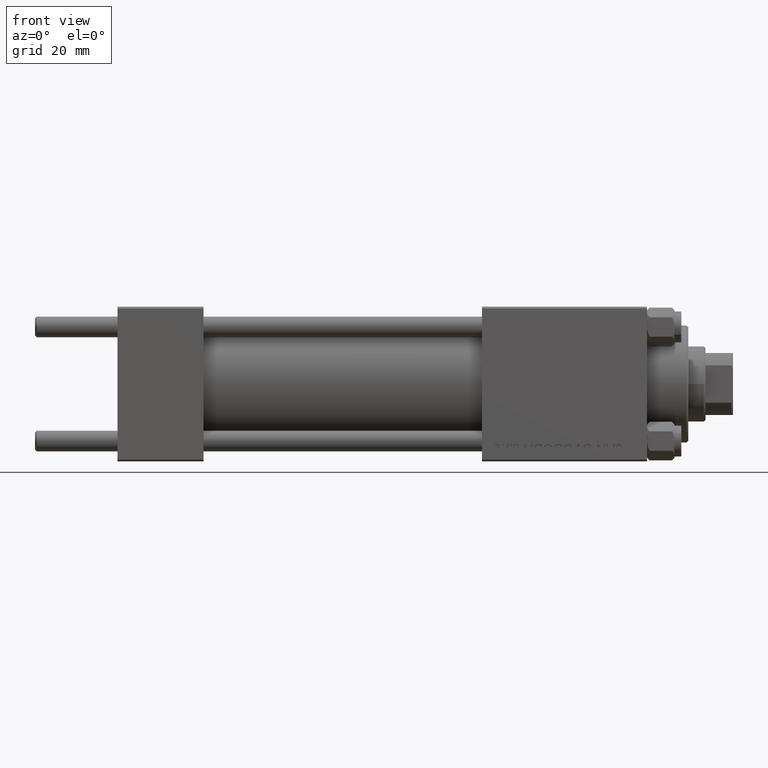
[diagram: clean part render]
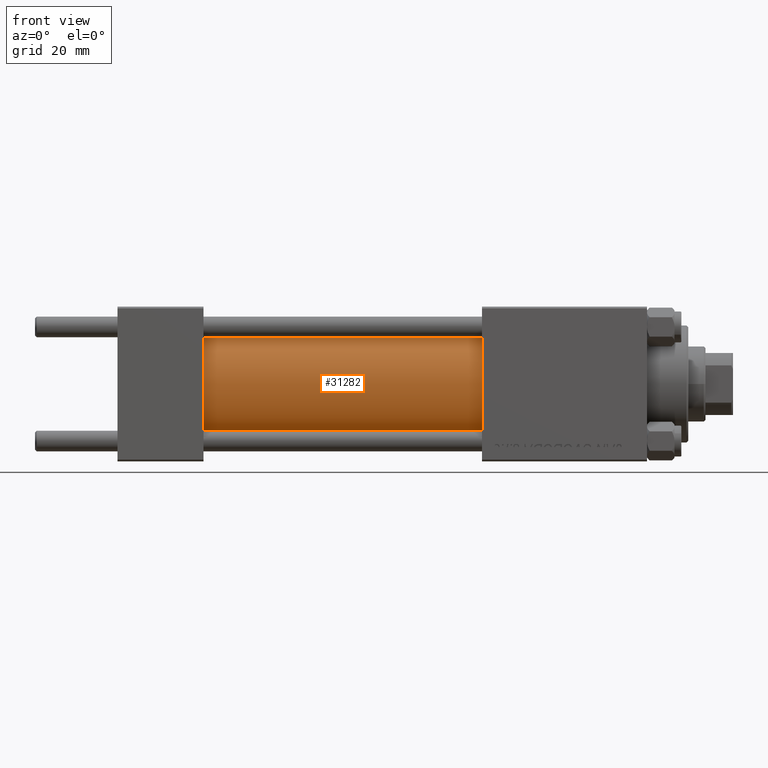
[diagram: same view with one face highlighted and labeled with its STEP entity id]
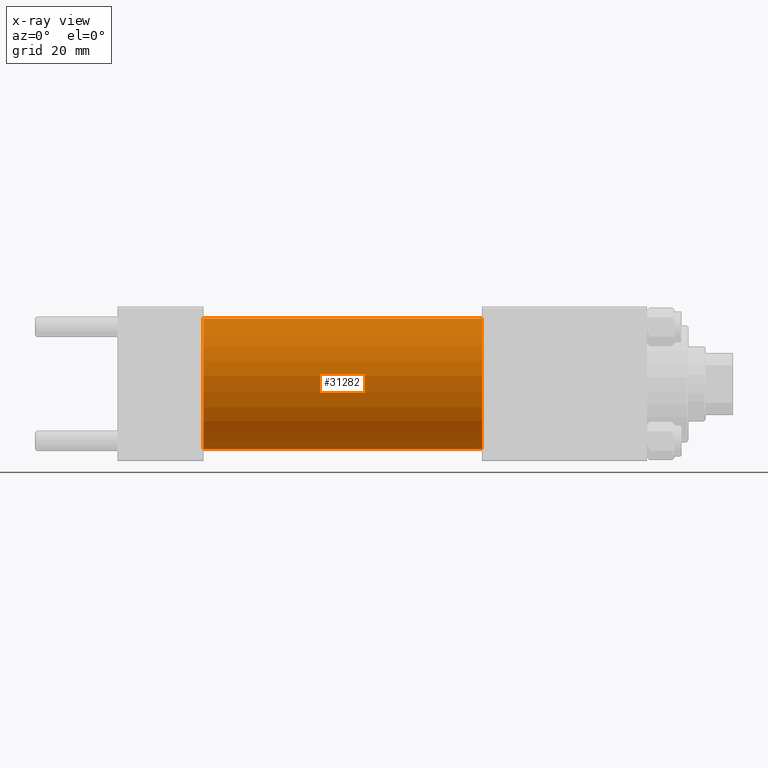
[diagram: x-ray of the same camera — body ghosted, the highlighted face saturated]
A machine part, front view. The second image highlights one B-rep face of the part: STEP entity #31282.
The next image is the same camera in x-ray: the body ghosted, the highlighted face saturated — about 0% of this face is hidden behind the body in this view.
In plain terms, the highlighted cylindrical surface (partial cylindrical patch) has radius 19 mm, axis along (-1, -0, -0).
Its self-contained STEP definition (entity closure, byte-faithful):
#1681 = EDGE_CURVE ( 'NONE', #16132, #37238, #33394, .T. ) ;
#3895 = CYLINDRICAL_SURFACE ( 'NONE', #10247, 19.00000000000000000 ) ;
#6294 = DIRECTION ( 'NONE',  ( -1.000000000000000000, -0.000000000000000000, -0.000000000000000000 ) ) ;
#9704 = CARTESIAN_POINT ( 'NONE',  ( 106.0000000000000142, 2.326828918379970970E-15, -19.00000000000000000 ) ) ;
#10247 = AXIS2_PLACEMENT_3D ( 'NONE', #30889, #23577, #38965 ) ;
#11257 = LINE ( 'NONE', #45313, #46544 ) ;
#12290 = DIRECTION ( 'NONE',  ( 1.000000000000000000, -0.000000000000000000, 0.000000000000000000 ) ) ;
#12410 = CARTESIAN_POINT ( 'NONE',  ( 106.0000000000000142, 0.000000000000000000, 19.00000000000000000 ) ) ;
#14843 = VECTOR ( 'NONE', #6294, 1000.000000000000000 ) ;
#14873 = AXIS2_PLACEMENT_3D ( 'NONE', #27190, #12290, #41841 ) ;
#16132 = VERTEX_POINT ( 'NONE', #34881 ) ;
#17160 = LINE ( 'NONE', #47672, #14843 ) ;
#18150 = ORIENTED_EDGE ( 'NONE', *, *, #32882, .F. ) ;
#18244 = CARTESIAN_POINT ( 'NONE',  ( 106.0000000000000142, 0.000000000000000000, 0.000000000000000000 ) ) ;
#18972 = VERTEX_POINT ( 'NONE', #12410 ) ;
#22051 = AXIS2_PLACEMENT_3D ( 'NONE', #18244, #48255, #45225 ) ;
#23577 = DIRECTION ( 'NONE',  ( -1.000000000000000000, -0.000000000000000000, -0.000000000000000000 ) ) ;
#26502 = ORIENTED_EDGE ( 'NONE', *, *, #35625, .F. ) ;
#27190 = CARTESIAN_POINT ( 'NONE',  ( 24.99999999999999289, 0.000000000000000000, 0.000000000000000000 ) ) ;
#27688 = VERTEX_POINT ( 'NONE', #9704 ) ;
#29103 = EDGE_LOOP ( 'NONE', ( #26502, #18150, #36412, #38887 ) ) ;
#30889 = CARTESIAN_POINT ( 'NONE',  ( 106.0000000000000142, 0.000000000000000000, 0.000000000000000000 ) ) ;
#31282 = ADVANCED_FACE ( 'NONE', ( #35449 ), #3895, .T. ) ;
#32882 = EDGE_CURVE ( 'NONE', #18972, #27688, #37356, .T. ) ;
#33394 = CIRCLE ( 'NONE', #14873, 19.00000000000000000 ) ;
#34881 = CARTESIAN_POINT ( 'NONE',  ( 24.99999999999999289, 0.000000000000000000, 19.00000000000000000 ) ) ;
#35449 = FACE_OUTER_BOUND ( 'NONE', #29103, .T. ) ;
#35625 = EDGE_CURVE ( 'NONE', #27688, #37238, #17160, .T. ) ;
#36412 = ORIENTED_EDGE ( 'NONE', *, *, #49125, .T. ) ;
#37238 = VERTEX_POINT ( 'NONE', #46319 ) ;
#37356 = CIRCLE ( 'NONE', #22051, 19.00000000000000000 ) ;
#38887 = ORIENTED_EDGE ( 'NONE', *, *, #1681, .T. ) ;
#38965 = DIRECTION ( 'NONE',  ( 0.000000000000000000, 0.000000000000000000, 1.000000000000000000 ) ) ;
#41052 = DIRECTION ( 'NONE',  ( -1.000000000000000000, -0.000000000000000000, -0.000000000000000000 ) ) ;
#41841 = DIRECTION ( 'NONE',  ( 0.000000000000000000, 0.000000000000000000, 1.000000000000000000 ) ) ;
#45225 = DIRECTION ( 'NONE',  ( 0.000000000000000000, 0.000000000000000000, -1.000000000000000000 ) ) ;
#45313 = CARTESIAN_POINT ( 'NONE',  ( 106.0000000000000142, 0.000000000000000000, 19.00000000000000000 ) ) ;
#46319 = CARTESIAN_POINT ( 'NONE',  ( 24.99999999999999289, 2.326828918379970970E-15, -19.00000000000000000 ) ) ;
#46544 = VECTOR ( 'NONE', #41052, 1000.000000000000000 ) ;
#47672 = CARTESIAN_POINT ( 'NONE',  ( 106.0000000000000142, 2.326828918379970970E-15, -19.00000000000000000 ) ) ;
#48255 = DIRECTION ( 'NONE',  ( 1.000000000000000000, 0.000000000000000000, 0.000000000000000000 ) ) ;
#49125 = EDGE_CURVE ( 'NONE', #18972, #16132, #11257, .T. ) ;